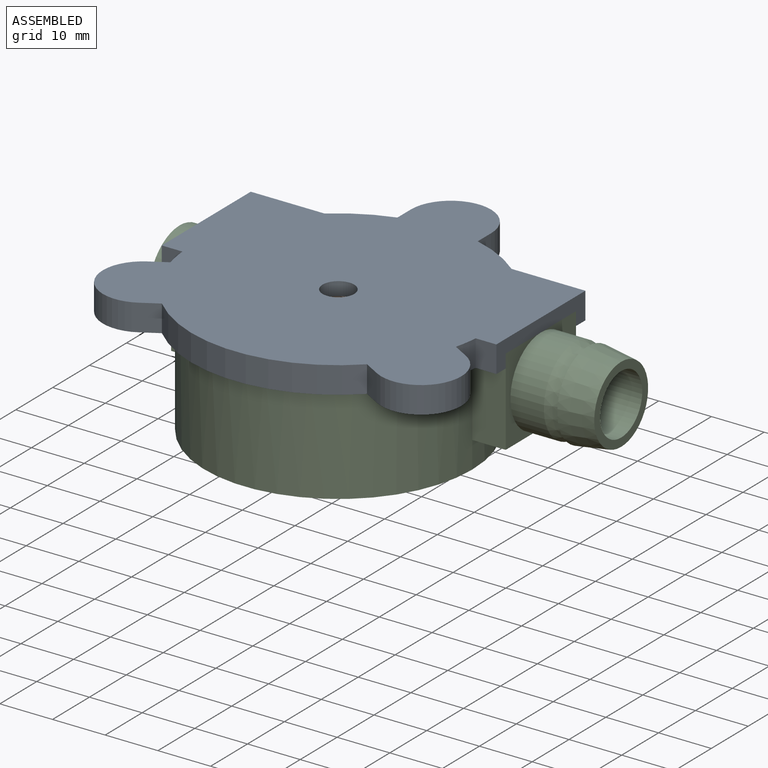
[diagram: assembled view]
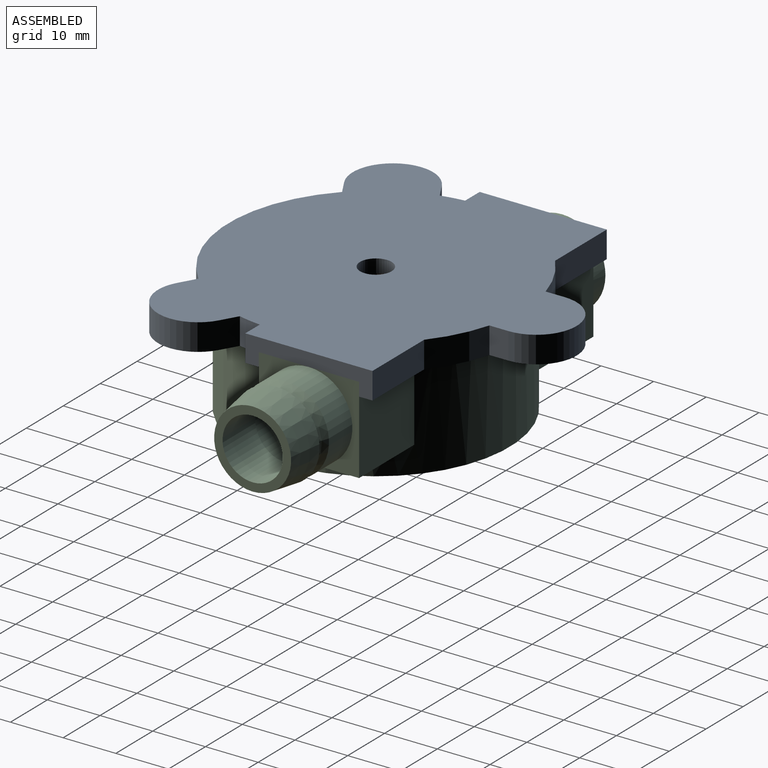
[diagram: assembled view, second angle]
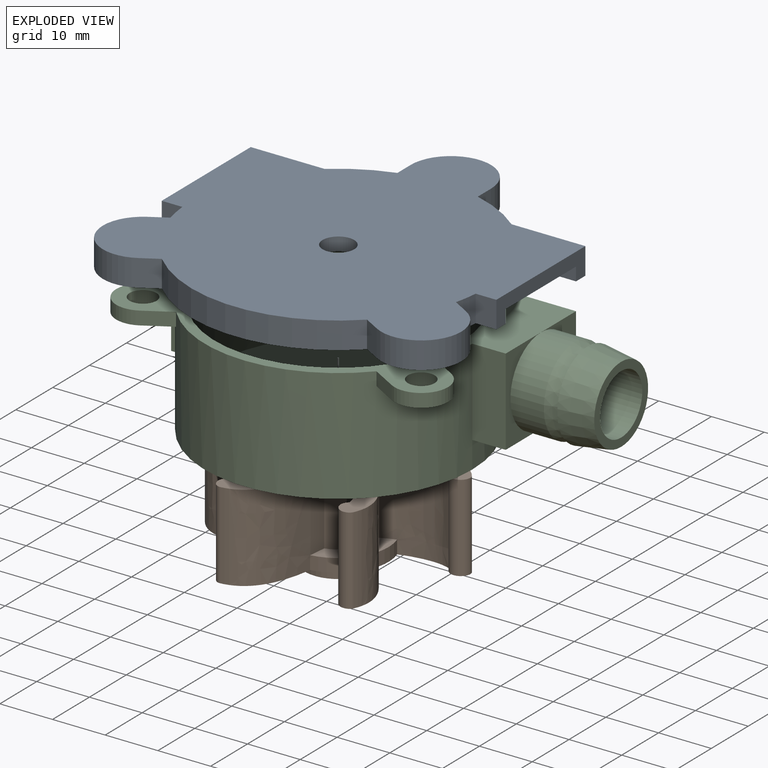
[diagram: exploded view]
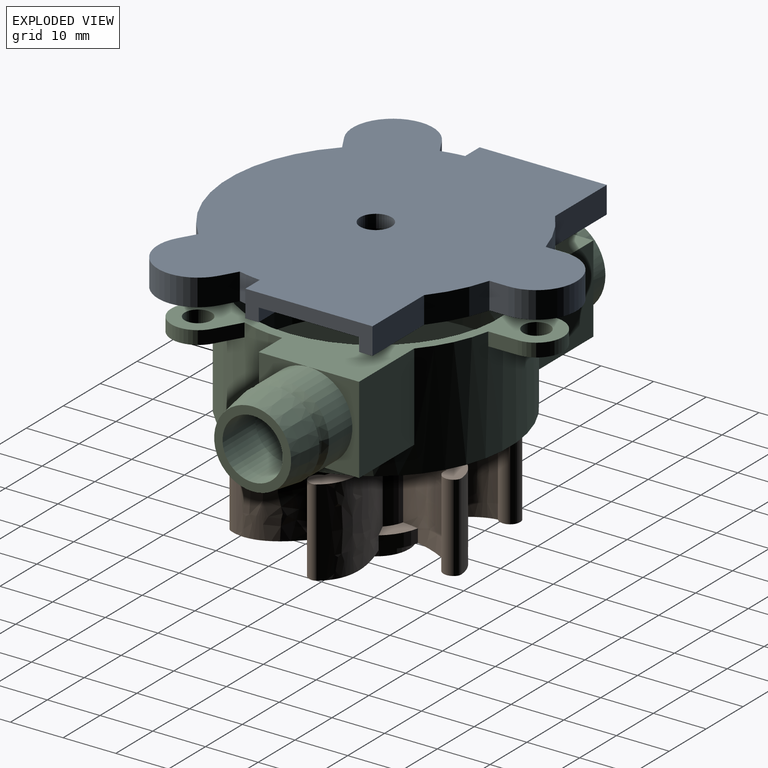
[diagram: exploded view, second angle]
ASSEMBLY  parts=3 mates=2
PART A: 49 faces, bbox 68x66x5.1 mm
  f0: plane 63.5x60.96mm, normal (0,0,1), area 2561.9mm2, adj f1,f9,f22,f23,f24,f25,f26,f27
  f1: plane 24.13x5.08mm, normal (-1,0,0), area 74.2mm2, adj f0,f2,f20,f21,f22,f33,f40,f41
  f2: plane 14.02x5.08mm, normal (0,-1,0), area 71.2mm2, adj f1,f3,f21,f41
  f3: cylinder r=27.94mm len=10.11mm, axis (0,0,-1), area 58.4mm2, adj f2,f4,f21,f41
  f4: plane 5.08x3.6mm, normal (-1,0,0), area 18.3mm2, adj f3,f5,f21,f41
  f5: cylinder r=7.62mm len=15.24mm, axis (0,0,-1), area 121.6mm2, adj f4,f6,f21,f41
  f6: plane 5.08x3.6mm, normal (1,0,0), area 18.3mm2, adj f5,f7,f21,f41
  f7: cylinder r=27.94mm len=10.11mm, axis (0,0,-1), area 58.4mm2, adj f6,f8,f21,f41
  f8: plane 14.02x5.08mm, normal (0,-1,0), area 71.2mm2, adj f7,f9,f21,f41
  f9: plane 24.13x5.08mm, normal (1,0,0), area 74.2mm2, adj f0,f8,f10,f21,f32,f33,f34,f41
  f10: plane 5.08x3.93mm, normal (0,1,0), area 19.9mm2, adj f9,f11,f21,f33
  f11: cylinder r=27.94mm len=5.08mm, axis (0,0,-1), area 22.2mm2, adj f10,f12,f21,f33
  f12: plane 5.08x3.12mm, normal (0.5,-0.87,0), area 18.3mm2, adj f11,f13,f21,f33
  f13: cylinder r=7.62mm len=14.22mm, axis (0,0,-1), area 121.6mm2, adj f12,f14,f21,f33
  f14: plane 5.08x3.12mm, normal (-0.5,0.87,0), area 18.3mm2, adj f13,f15,f21,f33
  f15: cylinder r=27.94mm len=38.94mm, axis (0,0,-1), area 218.9mm2, adj f14,f16,f21,f33
  f16: plane 5.08x3.12mm, normal (0.5,0.87,0), area 18.3mm2, adj f15,f17,f21,f33
  f17: cylinder r=7.62mm len=14.22mm, axis (0,0,-1), area 121.6mm2, adj f16,f18,f21,f33
  f18: plane 5.08x3.12mm, normal (-0.5,-0.87,0), area 18.3mm2, adj f17,f19,f21,f33
  f19: cylinder r=27.94mm len=5.08mm, axis (0,0,-1), area 22.2mm2, adj f18,f20,f21,f33
  f20: plane 5.08x3.93mm, normal (0,1,0), area 19.9mm2, adj f1,f19,f21,f33
  f21: plane 68.03x66.04mm, normal (0,0,-1), area 3148.2mm2, adj f1,f2,f3,f4,f5,f6,f7,f8
  f22: plane 6.35x2.54mm, normal (0,-1,0), area 16.1mm2, adj f0,f1,f23,f33
  f23: cylinder r=25.4mm len=8.04mm, axis (0,0,-1), area 20.8mm2, adj f0,f22,f24,f33
  f24: plane 4.84x2.8mm, normal (0.5,0.87,0), area 14.2mm2, adj f0,f23,f25,f33
  f25: cylinder r=5.08mm len=9.48mm, axis (0,0,-1), area 40.5mm2, adj f0,f24,f26,f33
  f26: plane 4.84x2.8mm, normal (-0.5,-0.87,0), area 14.2mm2, adj f0,f25,f27,f33
  f27: cylinder r=25.4mm len=38.03mm, axis (0,0,-1), area 109.1mm2, adj f0,f26,f28,f33
  f28: plane 4.84x2.8mm, normal (0.5,-0.87,0), area 14.2mm2, adj f0,f27,f29,f33
  f29: cylinder r=5.08mm len=9.48mm, axis (0,0,-1), area 40.5mm2, adj f0,f28,f30,f33
  f30: plane 4.84x2.8mm, normal (-0.5,0.87,0), area 14.2mm2, adj f0,f29,f31,f33
  f31: cylinder r=25.4mm len=8.04mm, axis (0,0,-1), area 20.8mm2, adj f0,f30,f32,f33
  f32: plane 6.35x2.54mm, normal (0,-1,0), area 16.1mm2, adj f0,f9,f31,f33
  f33: plane 68.03x27.94mm, normal (0,0,1), area 315.1mm2, adj f1,f9,f10,f11,f12,f13,f14,f15
  f34: plane 14.95x2.54mm, normal (0,1,0), area 38mm2, adj f0,f9,f35,f41
  f35: cylinder r=25.4mm len=11.72mm, axis (0,0,-1), area 33.6mm2, adj f0,f34,f36,f41
  f36: plane 5.59x2.54mm, normal (-1,0,0), area 14.2mm2, adj f0,f35,f37,f41
  f37: cylinder r=5.08mm len=10.16mm, axis (0,0,-1), area 40.5mm2, adj f0,f36,f38,f41
  f38: plane 5.59x2.54mm, normal (1,0,0), area 14.2mm2, adj f0,f37,f39,f41
  f39: cylinder r=25.4mm len=11.72mm, axis (0,0,-1), area 33.6mm2, adj f0,f38,f40,f41
  f40: plane 14.95x2.54mm, normal (0,1,0), area 38mm2, adj f0,f1,f39,f41
  f41: plane 63.5x19.05mm, normal (0,0,1), area 210.4mm2, adj f1,f2,f3,f4,f5,f6,f7,f8
  f42: cylinder r=2.54mm len=5.08mm, axis (0,0,-1), area 40.5mm2, adj f0,f43
  f43: plane 5.08x5.08mm, normal (0,0,1), area 20.3mm2, adj f42
  f44: cylinder r=2.54mm len=5.08mm, axis (0,0,-1), area 40.5mm2, adj f0,f45
  f45: plane 5.08x5.08mm, normal (0,0,1), area 20.3mm2, adj f44
  f46: cylinder r=2.54mm len=5.08mm, axis (0,0,-1), area 40.5mm2, adj f0,f47
  f47: plane 5.08x5.08mm, normal (0,0,1), area 20.3mm2, adj f46
  f48: cylinder r=3mm len=6mm, axis (0,0,-1), area 47.9mm2, adj f0,f21
PART B: 55 faces, bbox 40.1x45.7x19.1 mm
  f0: cylinder r=6.35mm len=13.97mm, axis (0,0,-1), area 49.6mm2, adj f2,f16,f30,f43
  f1: cylinder r=9.53mm len=6.32mm, axis (0,0,-1), area 17.2mm2, adj f2,f19,f30,f43
  f2: plane 6.36x4.46mm, normal (0,0,1), area 16.5mm2, adj f0,f1,f30,f43
  f3: cylinder r=6.35mm len=13.97mm, axis (0,0,-1), area 49.6mm2, adj f5,f16,f39,f42
  f4: cylinder r=9.53mm len=4.92mm, axis (0,0,-1), area 17.2mm2, adj f5,f19,f39,f42
  f5: plane 5.98x5.28mm, normal (0,0,1), area 16.5mm2, adj f3,f4,f39,f42
  f6: cylinder r=6.35mm len=13.97mm, axis (0,0,-1), area 49.6mm2, adj f8,f16,f35,f38
  f7: cylinder r=9.53mm len=6.49mm, axis (0,0,-1), area 17.2mm2, adj f8,f19,f35,f38
  f8: plane 6.53x3.81mm, normal (0,0,1), area 16.5mm2, adj f6,f7,f35,f38
  f9: cylinder r=6.35mm len=13.97mm, axis (0,0,-1), area 49.6mm2, adj f11,f16,f22,f31
  f10: cylinder r=9.53mm len=6.49mm, axis (0,0,-1), area 17.2mm2, adj f11,f19,f22,f31
  f11: plane 6.53x3.81mm, normal (0,0,1), area 16.5mm2, adj f9,f10,f22,f31
  f12: cylinder r=6.35mm len=13.97mm, axis (0,0,-1), area 49.6mm2, adj f14,f16,f26,f34
  f13: cylinder r=9.53mm len=6.32mm, axis (0,0,-1), area 17.2mm2, adj f14,f19,f26,f34
  f14: plane 6.36x4.46mm, normal (0,0,1), area 16.5mm2, adj f12,f13,f26,f34
  f15: cylinder r=6.35mm len=13.97mm, axis (0,0,-1), area 49.6mm2, adj f16,f18,f23,f27
  f16: plane 45.65x40.11mm, normal (0,0,1), area 462.6mm2, adj f0,f3,f6,f9,f12,f15,f22,f23
  f17: cylinder r=9.53mm len=4.92mm, axis (0,0,-1), area 17.2mm2, adj f18,f19,f23,f27
  f18: plane 5.98x5.28mm, normal (0,0,1), area 16.5mm2, adj f15,f17,f23,f27
  f19: plane 45.65x40.11mm, normal (0,0,-1), area 459.9mm2, adj f1,f4,f7,f10,f13,f17,f21,f22
  f20: plane 12.7x12.7mm, normal (0,0,-1), area 126.7mm2, adj f21
  f21: cylinder r=6.35mm len=12.7mm, axis (0,0,-1), area 101.3mm2, adj f19,f20
  f22: extruded ~16.51x12.74mm, area 208.1mm2, adj f9,f10,f11,f16,f19,f24
  f23: extruded ~16.71x16.51mm, area 286.3mm2, adj f15,f16,f17,f18,f19,f25
  f24: cylinder r=1.91mm len=16.51mm, axis (0,0,-1), area 88.6mm2, adj f16,f19,f22,f54
  f25: extruded ~16.51x1.29mm, area 24.8mm2, adj f16,f19,f23,f54
  f26: extruded ~16.51x13.48mm, area 286.3mm2, adj f12,f13,f14,f16,f19,f28
  f27: extruded ~16.51x10.67mm, area 208.1mm2, adj f15,f16,f17,f18,f19,f29
  f28: extruded ~16.51x1.5mm, area 24.8mm2, adj f16,f19,f26,f50
  f29: cylinder r=1.91mm len=16.51mm, axis (0,0,-1), area 88.6mm2, adj f16,f19,f27,f50
  f30: extruded ~16.51x11.4mm, area 208.1mm2, adj f0,f1,f2,f16,f19,f32
  f31: extruded ~16.51x15.45mm, area 286.3mm2, adj f9,f10,f11,f16,f19,f33
  f32: cylinder r=1.91mm len=16.51mm, axis (0,0,-1), area 88.6mm2, adj f16,f19,f30,f53
  f33: extruded ~16.51x1.31mm, area 24.8mm2, adj f16,f19,f31,f53
  f34: extruded ~16.51x11.4mm, area 208.1mm2, adj f12,f13,f14,f16,f19,f36
  f35: extruded ~16.51x15.45mm, area 286.3mm2, adj f6,f7,f8,f16,f19,f37
  f36: cylinder r=1.91mm len=16.51mm, axis (0,0,-1), area 88.6mm2, adj f16,f19,f34,f49
  f37: extruded ~16.51x1.31mm, area 24.8mm2, adj f16,f19,f35,f49
  f38: extruded ~16.51x12.74mm, area 208.1mm2, adj f6,f7,f8,f16,f19,f40
  f39: extruded ~16.71x16.51mm, area 286.3mm2, adj f3,f4,f5,f16,f19,f41
  f40: cylinder r=1.91mm len=16.51mm, axis (0,0,-1), area 88.6mm2, adj f16,f19,f38,f51
  f41: extruded ~16.51x1.29mm, area 24.8mm2, adj f16,f19,f39,f51
  f42: extruded ~16.51x10.67mm, area 208.1mm2, adj f3,f4,f5,f16,f19,f44
  f43: extruded ~16.51x13.48mm, area 286.3mm2, adj f0,f1,f2,f16,f19,f45
  f44: cylinder r=1.91mm len=16.51mm, axis (0,0,-1), area 88.6mm2, adj f16,f19,f42,f52
  f45: extruded ~16.51x1.5mm, area 24.8mm2, adj f16,f19,f43,f52
  f46: cylinder r=3mm len=12.7mm, axis (0,0,1), area 175.3mm2, adj f16,f47,f48
  f47: plane 12.7x4.47mm, normal (0,1,0), area 56.8mm2, adj f16,f46,f48
  f48: plane 6x5mm, normal (0,0,1), area 25.2mm2, adj f46,f47
  f49: cylinder r=1.27mm len=16.51mm, axis (0,0,-1), area 16.2mm2, adj f16,f19,f36,f37
  f50: cylinder r=1.27mm len=16.51mm, axis (0,0,-1), area 16.2mm2, adj f16,f19,f28,f29
  f51: cylinder r=1.27mm len=16.51mm, axis (0,0,-1), area 16.2mm2, adj f16,f19,f40,f41
  f52: cylinder r=1.27mm len=16.51mm, axis (0,0,-1), area 16.2mm2, adj f16,f19,f44,f45
  f53: cylinder r=1.27mm len=16.51mm, axis (0,0,-1), area 16.2mm2, adj f16,f19,f32,f33
  f54: cylinder r=1.27mm len=16.51mm, axis (0,0,-1), area 16.2mm2, adj f16,f19,f24,f25
PART C: 45 faces, bbox 83.8x61x21.6 mm
  f0: plane 16.51x9.53mm, normal (-1,0,0), area 50.2mm2, adj f4,f24,f27,f43
  f1: cylinder r=23.49mm len=46.99mm, axis (0,0,-1), area 2209.3mm2, adj f4,f20,f38,f39
  f2: plane 16.51x9.53mm, normal (1,0,0), area 50.2mm2, adj f4,f29,f31,f32
  f3: cylinder r=25.4mm len=50.8mm, axis (0,0,-1), area 2656.4mm2, adj f4,f5,f7,f9,f10,f12,f14,f15
  f4: plane 63.5x60.96mm, normal (0,0,-1), area 855.9mm2, adj f0,f1,f2,f3,f5,f6,f7,f8
  f5: plane 4.84x2.8mm, normal (0.5,-0.87,0), area 14.2mm2, adj f3,f4,f6,f9
  f6: cylinder r=5.08mm len=9.48mm, axis (0,0,-1), area 40.5mm2, adj f4,f5,f7,f9
  f7: plane 4.84x2.8mm, normal (-0.5,0.87,0), area 14.2mm2, adj f3,f4,f6,f9
  f8: cylinder r=2.54mm len=5.08mm, axis (0,0,-1), area 40.5mm2, adj f4,f9
  f9: plane 12.46x12.28mm, normal (0,0,1), area 73.6mm2, adj f3,f5,f6,f7,f8
  f10: plane 4.84x2.8mm, normal (0.5,0.87,0), area 14.2mm2, adj f3,f4,f11,f14
  f11: cylinder r=5.08mm len=9.48mm, axis (0,0,-1), area 40.5mm2, adj f4,f10,f12,f14
  f12: plane 4.84x2.8mm, normal (-0.5,-0.87,0), area 14.2mm2, adj f3,f4,f11,f14
  f13: cylinder r=2.54mm len=5.08mm, axis (0,0,-1), area 40.5mm2, adj f4,f14
  f14: plane 12.46x12.28mm, normal (0,0,1), area 73.6mm2, adj f3,f10,f11,f12,f13
  f15: plane 5.59x2.54mm, normal (-1,0,0), area 14.2mm2, adj f3,f4,f16,f19
  f16: cylinder r=5.08mm len=10.16mm, axis (0,0,-1), area 40.5mm2, adj f4,f15,f17,f19
  f17: plane 5.59x2.54mm, normal (1,0,0), area 14.2mm2, adj f3,f4,f16,f19
  f18: cylinder r=2.54mm len=5.08mm, axis (0,0,-1), area 40.5mm2, adj f4,f19
  f19: plane 10.67x10.16mm, normal (0,0,1), area 73.6mm2, adj f3,f15,f16,f17,f18
  f20: plane 46.99x46.99mm, normal (0,0,-1), area 1607.5mm2, adj f1,f22
  f21: plane 50.8x50.8mm, normal (0,0,1), area 2026.8mm2, adj f3
  f22: cylinder r=6.35mm len=12.7mm, axis (0,0,-1), area 101.3mm2, adj f20,f23
  f23: plane 12.7x12.7mm, normal (0,0,-1), area 126.7mm2, adj f22
  f24: plane 16.51x6.35mm, normal (0,1,0), area 104.8mm2, adj f0,f3,f4,f27
  f25: plane 16.51x9.53mm, normal (-1,0,0), area 50.2mm2, adj f4,f26,f27,f43
  f26: plane 16.51x14.95mm, normal (0,-1,0), area 246.8mm2, adj f3,f4,f25,f27
  f27: plane 19.05x14.95mm, normal (0,0,1), area 171.2mm2, adj f0,f3,f24,f25,f26
  f28: plane 16.51x9.53mm, normal (1,0,0), area 50.2mm2, adj f4,f30,f31,f32
  f29: plane 16.51x6.35mm, normal (0,1,0), area 104.8mm2, adj f2,f3,f4,f31
  f30: plane 16.51x14.95mm, normal (0,-1,0), area 246.8mm2, adj f3,f4,f28,f31
  f31: plane 19.05x14.95mm, normal (0,0,1), area 171.2mm2, adj f2,f3,f28,f29,f30
  f32: cylinder r=8.26mm len=16.51mm, axis (-1,0,0), area 329.4mm2, adj f2,f28,f33
  f33: cone r=8.26mm half-angle=20.6deg, axis (-1,0,0), area 132.6mm2, adj f32,f34
  f34: plane 16.51x16.51mm, normal (-1,0,0), area 46.6mm2, adj f33,f36
  f35: plane 14.61x14.61mm, normal (1,0,0), area 64.9mm2, adj f36,f37
  f36: cone r=8.26mm half-angle=8.5deg, axis (-1,0,0), area 313.8mm2, adj f34,f35
  f37: cylinder r=5.71mm len=11.43mm, axis (1,0,0), area 319.2mm2, adj f35,f42
  f38: cylinder r=5.71mm len=13.87mm, axis (1,0,0), area 385.7mm2, adj f1,f40
  f39: cylinder r=5.71mm len=18.95mm, axis (1,0,0), area 568.1mm2, adj f1,f44
  f40: plane 12.7x12.7mm, normal (1,0,0), area 24.1mm2, adj f38,f41
  f41: cylinder r=6.35mm len=12.7mm, axis (-1,0,0), area 253.4mm2, adj f40,f42
  f42: plane 12.7x12.7mm, normal (-1,0,0), area 24.1mm2, adj f37,f41
  f43: cylinder r=8.26mm len=16.51mm, axis (1,0,0), area 263.5mm2, adj f0,f25,f44
  f44: plane 16.51x16.51mm, normal (-1,0,0), area 111.5mm2, adj f39,f43
PLACE A rot(axis=(1,0,0),180deg) t=(59.69,-50.8,19.05)mm
PLACE B rot(axis=(0,0,1),160.2deg) t=(15.24,0,0)mm
PLACE C rot(axis=(1,0,0),180deg) t=(-48.26,38.1,16.51)mm fixed
MATE fastened A.f5 <-> C.f16  axis (0,0,-1) through (15.24,30.48,13.97)mm
MATE revolute B.f0 <-> C.f1  axis (0,0,-1) through (15.24,0,-2.54)mm
